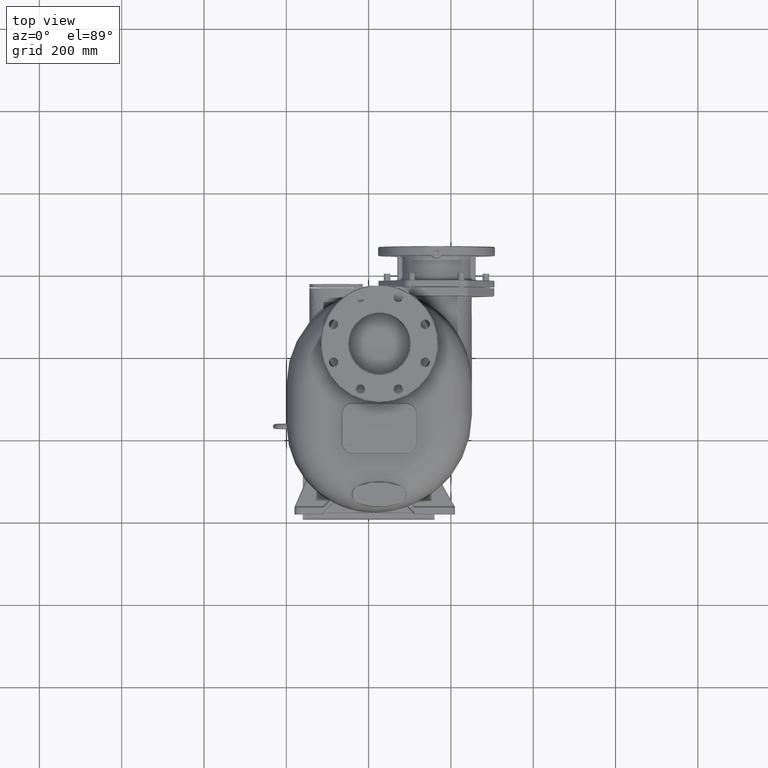
[diagram: clean part render]
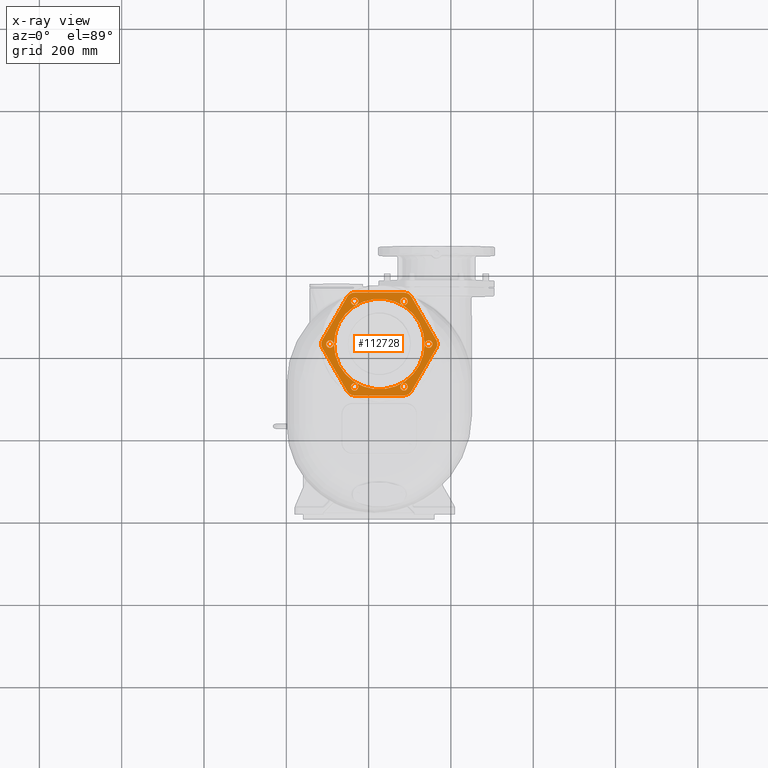
[diagram: x-ray — body ghosted, one internal face saturated and labeled with its STEP entity id]
A machine part, top view, then the same camera in x-ray: the body is ghosted and one INTERNAL B-rep face — a face not visible from any outside direction — is saturated and labeled: STEP entity #112728.
In plain terms, the highlighted planar face has unit normal (0, 0, 1).
Its self-contained STEP definition (entity closure, byte-faithful):
#46116=CARTESIAN_POINT('',(2.6E1,4.09E2,2.055E2));
#46117=DIRECTION('',(0.E0,0.E0,1.E0));
#46118=DIRECTION('',(1.E0,0.E0,0.E0));
#46119=AXIS2_PLACEMENT_3D('',#46116,#46117,#46118);
#46125=CARTESIAN_POINT('',(8.6E1,3.050769515459E2,2.055E2));
#46126=DIRECTION('',(0.E0,0.E0,1.E0));
#46127=DIRECTION('',(-1.E0,0.E0,0.E0));
#46128=AXIS2_PLACEMENT_3D('',#46125,#46126,#46127);
#46130=CARTESIAN_POINT('',(8.6E1,3.050769515459E2,2.055E2));
#46131=DIRECTION('',(0.E0,0.E0,1.E0));
#46132=DIRECTION('',(1.E0,0.E0,0.E0));
#46133=AXIS2_PLACEMENT_3D('',#46130,#46131,#46132);
#46135=CARTESIAN_POINT('',(1.46E2,4.09E2,2.055E2));
#46136=DIRECTION('',(0.E0,0.E0,1.E0));
#46137=DIRECTION('',(-5.E-1,-8.660254037844E-1,0.E0));
#46138=AXIS2_PLACEMENT_3D('',#46135,#46136,#46137);
#46140=CARTESIAN_POINT('',(1.46E2,4.09E2,2.055E2));
#46141=DIRECTION('',(0.E0,0.E0,1.E0));
#46142=DIRECTION('',(5.E-1,8.660254037844E-1,0.E0));
#46143=AXIS2_PLACEMENT_3D('',#46140,#46141,#46142);
#46145=CARTESIAN_POINT('',(8.6E1,5.129230484541E2,2.055E2));
#46146=DIRECTION('',(0.E0,0.E0,1.E0));
#46147=DIRECTION('',(5.E-1,-8.660254037844E-1,0.E0));
#46148=AXIS2_PLACEMENT_3D('',#46145,#46146,#46147);
#46150=CARTESIAN_POINT('',(8.6E1,5.129230484541E2,2.055E2));
#46151=DIRECTION('',(0.E0,0.E0,1.E0));
#46152=DIRECTION('',(-5.E-1,8.660254037844E-1,0.E0));
#46153=AXIS2_PLACEMENT_3D('',#46150,#46151,#46152);
#46155=CARTESIAN_POINT('',(-3.4E1,5.129230484541E2,2.055E2));
#46156=DIRECTION('',(0.E0,0.E0,1.E0));
#46157=DIRECTION('',(1.E0,0.E0,0.E0));
#46158=AXIS2_PLACEMENT_3D('',#46155,#46156,#46157);
#46160=CARTESIAN_POINT('',(-3.4E1,5.129230484541E2,2.055E2));
#46161=DIRECTION('',(0.E0,0.E0,1.E0));
#46162=DIRECTION('',(-1.E0,0.E0,0.E0));
#46163=AXIS2_PLACEMENT_3D('',#46160,#46161,#46162);
#46165=CARTESIAN_POINT('',(-9.4E1,4.09E2,2.055E2));
#46166=DIRECTION('',(0.E0,0.E0,1.E0));
#46167=DIRECTION('',(5.E-1,8.660254037844E-1,0.E0));
#46168=AXIS2_PLACEMENT_3D('',#46165,#46166,#46167);
#46170=CARTESIAN_POINT('',(-9.4E1,4.09E2,2.055E2));
#46171=DIRECTION('',(0.E0,0.E0,1.E0));
#46172=DIRECTION('',(-5.E-1,-8.660254037844E-1,0.E0));
#46173=AXIS2_PLACEMENT_3D('',#46170,#46171,#46172);
#46175=CARTESIAN_POINT('',(-3.4E1,3.050769515459E2,2.055E2));
#46176=DIRECTION('',(0.E0,0.E0,1.E0));
#46177=DIRECTION('',(-5.E-1,8.660254037844E-1,0.E0));
#46178=AXIS2_PLACEMENT_3D('',#46175,#46176,#46177);
#46180=CARTESIAN_POINT('',(-3.4E1,3.050769515459E2,2.055E2));
#46181=DIRECTION('',(0.E0,0.E0,1.E0));
#46182=DIRECTION('',(5.E-1,-8.660254037844E-1,0.E0));
#46183=AXIS2_PLACEMENT_3D('',#46180,#46181,#46182);
#46197=DIRECTION('',(5.E-1,-8.660254037844E-1,0.E0));
#46198=VECTOR('',#46197,1.200888559914E2);
#46199=CARTESIAN_POINT('',(-1.122753894709E2,3.985E2,2.055E2));
#46200=LINE('',#46199,#46198);
#46206=CARTESIAN_POINT('',(-9.408885599144E1,4.09E2,2.055E2));
#46207=DIRECTION('',(0.E0,0.E0,-1.E0));
#46208=DIRECTION('',(-8.660254037845E-1,-5.E-1,0.E0));
#46209=AXIS2_PLACEMENT_3D('',#46206,#46207,#46208);
#46223=DIRECTION('',(-5.E-1,-8.660254037844E-1,0.E0));
#46224=VECTOR('',#46223,1.200888559914E2);
#46225=CARTESIAN_POINT('',(-5.223096147519E1,5.235E2,2.055E2));
#46226=LINE('',#46225,#46224);
#46232=CARTESIAN_POINT('',(-3.404442799572E1,5.13E2,2.055E2));
#46233=DIRECTION('',(0.E0,0.E0,-1.E0));
#46234=DIRECTION('',(-8.660254037844E-1,5.E-1,0.E0));
#46235=AXIS2_PLACEMENT_3D('',#46232,#46233,#46234);
#46249=DIRECTION('',(-1.E0,0.E0,0.E0));
#46250=VECTOR('',#46249,1.200888559914E2);
#46251=CARTESIAN_POINT('',(8.604442799572E1,5.34E2,2.055E2));
#46252=LINE('',#46251,#46250);
#46258=CARTESIAN_POINT('',(8.604442799572E1,5.13E2,2.055E2));
#46259=DIRECTION('',(0.E0,0.E0,-1.E0));
#46260=DIRECTION('',(0.E0,1.E0,0.E0));
#46261=AXIS2_PLACEMENT_3D('',#46258,#46259,#46260);
#46267=DIRECTION('',(-5.E-1,8.660254037844E-1,0.E0));
#46268=VECTOR('',#46267,1.200888559914E2);
#46269=CARTESIAN_POINT('',(1.642753894709E2,4.195E2,2.055E2));
#46270=LINE('',#46269,#46268);
#46284=CARTESIAN_POINT('',(1.460888559914E2,4.09E2,2.055E2));
#46285=DIRECTION('',(0.E0,0.E0,-1.E0));
#46286=DIRECTION('',(8.660254037844E-1,5.E-1,0.E0));
#46287=AXIS2_PLACEMENT_3D('',#46284,#46285,#46286);
#46293=DIRECTION('',(5.E-1,8.660254037844E-1,0.E0));
#46294=VECTOR('',#46293,1.200888559914E2);
#46295=CARTESIAN_POINT('',(1.042309614752E2,2.945E2,2.055E2));
#46296=LINE('',#46295,#46294);
#46310=CARTESIAN_POINT('',(8.604442799572E1,3.05E2,2.055E2));
#46311=DIRECTION('',(0.E0,0.E0,-1.E0));
#46312=DIRECTION('',(8.660254037844E-1,-5.E-1,0.E0));
#46313=AXIS2_PLACEMENT_3D('',#46310,#46311,#46312);
#46319=DIRECTION('',(1.E0,0.E0,0.E0));
#46320=VECTOR('',#46319,1.200888559914E2);
#46321=CARTESIAN_POINT('',(-3.404442799572E1,2.84E2,2.055E2));
#46322=LINE('',#46321,#46320);
#46336=CARTESIAN_POINT('',(-3.404442799572E1,3.05E2,2.055E2));
#46337=DIRECTION('',(0.E0,0.E0,-1.E0));
#46338=DIRECTION('',(0.E0,-1.E0,0.E0));
#46339=AXIS2_PLACEMENT_3D('',#46336,#46337,#46338);
#49358=CARTESIAN_POINT('',(2.6E1,4.09E2,2.055E2));
#49359=DIRECTION('',(0.E0,0.E0,1.E0));
#49360=DIRECTION('',(-1.E0,0.E0,0.E0));
#49361=AXIS2_PLACEMENT_3D('',#49358,#49359,#49360);
#55787=CARTESIAN_POINT('',(1.042309614752E2,5.235E2,2.055E2));
#55788=VERTEX_POINT('',#55787);
#55789=CARTESIAN_POINT('',(8.604442799572E1,5.34E2,2.055E2));
#55790=VERTEX_POINT('',#55789);
#55791=CARTESIAN_POINT('',(1.642753894709E2,3.985E2,2.055E2));
#55792=VERTEX_POINT('',#55791);
#55793=CARTESIAN_POINT('',(1.642753894709E2,4.195E2,2.055E2));
#55794=VERTEX_POINT('',#55793);
#55795=CARTESIAN_POINT('',(8.604442799572E1,2.84E2,2.055E2));
#55796=VERTEX_POINT('',#55795);
#55797=CARTESIAN_POINT('',(1.042309614752E2,2.945E2,2.055E2));
#55798=VERTEX_POINT('',#55797);
#55799=CARTESIAN_POINT('',(-3.404442799572E1,5.34E2,2.055E2));
#55800=VERTEX_POINT('',#55799);
#55801=CARTESIAN_POINT('',(-5.223096147519E1,5.235E2,2.055E2));
#55802=VERTEX_POINT('',#55801);
#55803=CARTESIAN_POINT('',(-1.122753894709E2,4.195E2,2.055E2));
#55804=VERTEX_POINT('',#55803);
#55805=CARTESIAN_POINT('',(-1.122753894709E2,3.985E2,2.055E2));
#55806=VERTEX_POINT('',#55805);
#55807=CARTESIAN_POINT('',(-5.223096147519E1,2.945E2,2.055E2));
#55808=VERTEX_POINT('',#55807);
#55809=CARTESIAN_POINT('',(-3.404442799572E1,2.84E2,2.055E2));
#55810=VERTEX_POINT('',#55809);
#55833=CARTESIAN_POINT('',(7.7E1,3.050769515459E2,2.055E2));
#55834=CARTESIAN_POINT('',(9.5E1,3.050769515459E2,2.055E2));
#55835=VERTEX_POINT('',#55833);
#55836=VERTEX_POINT('',#55834);
#55841=CARTESIAN_POINT('',(1.415E2,4.012057713659E2,2.055E2));
#55842=CARTESIAN_POINT('',(1.505E2,4.167942286341E2,2.055E2));
#55843=VERTEX_POINT('',#55841);
#55844=VERTEX_POINT('',#55842);
#55849=CARTESIAN_POINT('',(9.05E1,5.051288198201E2,2.055E2));
#55850=CARTESIAN_POINT('',(8.15E1,5.207172770882E2,2.055E2));
#55851=VERTEX_POINT('',#55849);
#55852=VERTEX_POINT('',#55850);
#55857=CARTESIAN_POINT('',(-2.5E1,5.129230484541E2,2.055E2));
#55858=CARTESIAN_POINT('',(-4.3E1,5.129230484541E2,2.055E2));
#55859=VERTEX_POINT('',#55857);
#55860=VERTEX_POINT('',#55858);
#55865=CARTESIAN_POINT('',(-8.95E1,4.167942286341E2,2.055E2));
#55866=CARTESIAN_POINT('',(-9.85E1,4.012057713659E2,2.055E2));
#55867=VERTEX_POINT('',#55865);
#55868=VERTEX_POINT('',#55866);
#55873=CARTESIAN_POINT('',(-3.85E1,3.128711801799E2,2.055E2));
#55874=CARTESIAN_POINT('',(-2.95E1,2.972827229118E2,2.055E2));
#55875=VERTEX_POINT('',#55873);
#55876=VERTEX_POINT('',#55874);
#55964=CARTESIAN_POINT('',(1.36E2,4.09E2,2.055E2));
#55965=CARTESIAN_POINT('',(-8.4E1,4.09E2,2.055E2));
#55966=VERTEX_POINT('',#55964);
#55967=VERTEX_POINT('',#55965);
#112656=CARTESIAN_POINT('',(2.6E1,4.09E2,2.055E2));
#112657=DIRECTION('',(0.E0,0.E0,1.E0));
#112658=DIRECTION('',(0.E0,1.E0,0.E0));
#112659=AXIS2_PLACEMENT_3D('',#112656,#112657,#112658);
#112660=PLANE('',#112659);
#112662=ORIENTED_EDGE('',*,*,#112661,.T.);
#112664=ORIENTED_EDGE('',*,*,#112663,.F.);
#112666=ORIENTED_EDGE('',*,*,#112665,.T.);
#112668=ORIENTED_EDGE('',*,*,#112667,.F.);
#112670=ORIENTED_EDGE('',*,*,#112669,.T.);
#112672=ORIENTED_EDGE('',*,*,#112671,.F.);
#112674=ORIENTED_EDGE('',*,*,#112673,.T.);
#112676=ORIENTED_EDGE('',*,*,#112675,.F.);
#112678=ORIENTED_EDGE('',*,*,#112677,.T.);
#112680=ORIENTED_EDGE('',*,*,#112679,.F.);
#112682=ORIENTED_EDGE('',*,*,#112681,.T.);
#112684=ORIENTED_EDGE('',*,*,#112683,.F.);
#112685=EDGE_LOOP('',(#112662,#112664,#112666,#112668,#112670,#112672,#112674,
#112676,#112678,#112680,#112682,#112684));
#112686=FACE_OUTER_BOUND('',#112685,.F.);
#112688=ORIENTED_EDGE('',*,*,#112687,.F.);
#112690=ORIENTED_EDGE('',*,*,#112689,.F.);
#112691=EDGE_LOOP('',(#112688,#112690));
#112692=FACE_BOUND('',#112691,.F.);
#112694=ORIENTED_EDGE('',*,*,#112693,.F.);
#112696=ORIENTED_EDGE('',*,*,#112695,.F.);
#112697=EDGE_LOOP('',(#112694,#112696));
#112698=FACE_BOUND('',#112697,.F.);
#112700=ORIENTED_EDGE('',*,*,#112699,.F.);
#112702=ORIENTED_EDGE('',*,*,#112701,.F.);
#112703=EDGE_LOOP('',(#112700,#112702));
#112704=FACE_BOUND('',#112703,.F.);
#112706=ORIENTED_EDGE('',*,*,#112705,.F.);
#112708=ORIENTED_EDGE('',*,*,#112707,.F.);
#112709=EDGE_LOOP('',(#112706,#112708));
#112710=FACE_BOUND('',#112709,.F.);
#112712=ORIENTED_EDGE('',*,*,#112711,.F.);
#112714=ORIENTED_EDGE('',*,*,#112713,.F.);
#112715=EDGE_LOOP('',(#112712,#112714));
#112716=FACE_BOUND('',#112715,.F.);
#112718=ORIENTED_EDGE('',*,*,#112717,.F.);
#112720=ORIENTED_EDGE('',*,*,#112719,.F.);
#112721=EDGE_LOOP('',(#112718,#112720));
#112722=FACE_BOUND('',#112721,.F.);
#112723=ORIENTED_EDGE('',*,*,#112646,.F.);
#112725=ORIENTED_EDGE('',*,*,#112724,.F.);
#112726=EDGE_LOOP('',(#112723,#112725));
#112727=FACE_BOUND('',#112726,.F.);
#112728=ADVANCED_FACE('',(#112686,#112692,#112698,#112704,#112710,#112716,
#112722,#112727),#112660,.F.);
#46120=CIRCLE('',#46119,1.1E2);
#46129=CIRCLE('',#46128,9.E0);
#46134=CIRCLE('',#46133,9.E0);
#46139=CIRCLE('',#46138,9.E0);
#46144=CIRCLE('',#46143,9.E0);
#46149=CIRCLE('',#46148,9.E0);
#46154=CIRCLE('',#46153,9.E0);
#46159=CIRCLE('',#46158,9.E0);
#46164=CIRCLE('',#46163,9.E0);
#46169=CIRCLE('',#46168,9.E0);
#46174=CIRCLE('',#46173,9.E0);
#46179=CIRCLE('',#46178,9.E0);
#46184=CIRCLE('',#46183,9.E0);
#46210=CIRCLE('',#46209,2.1E1);
#46236=CIRCLE('',#46235,2.1E1);
#46262=CIRCLE('',#46261,2.1E1);
#46288=CIRCLE('',#46287,2.1E1);
#46314=CIRCLE('',#46313,2.1E1);
#46340=CIRCLE('',#46339,2.1E1);
#49362=CIRCLE('',#49361,1.1E2);
#112646=EDGE_CURVE('',#55966,#55967,#46120,.T.);
#112661=EDGE_CURVE('',#55806,#55808,#46200,.T.);
#112663=EDGE_CURVE('',#55810,#55808,#46340,.T.);
#112665=EDGE_CURVE('',#55810,#55796,#46322,.T.);
#112667=EDGE_CURVE('',#55798,#55796,#46314,.T.);
#112669=EDGE_CURVE('',#55798,#55792,#46296,.T.);
#112671=EDGE_CURVE('',#55794,#55792,#46288,.T.);
#112673=EDGE_CURVE('',#55794,#55788,#46270,.T.);
#112675=EDGE_CURVE('',#55790,#55788,#46262,.T.);
#112677=EDGE_CURVE('',#55790,#55800,#46252,.T.);
#112679=EDGE_CURVE('',#55802,#55800,#46236,.T.);
#112681=EDGE_CURVE('',#55802,#55804,#46226,.T.);
#112683=EDGE_CURVE('',#55806,#55804,#46210,.T.);
#112687=EDGE_CURVE('',#55835,#55836,#46129,.T.);
#112689=EDGE_CURVE('',#55836,#55835,#46134,.T.);
#112693=EDGE_CURVE('',#55843,#55844,#46139,.T.);
#112695=EDGE_CURVE('',#55844,#55843,#46144,.T.);
#112699=EDGE_CURVE('',#55851,#55852,#46149,.T.);
#112701=EDGE_CURVE('',#55852,#55851,#46154,.T.);
#112705=EDGE_CURVE('',#55859,#55860,#46159,.T.);
#112707=EDGE_CURVE('',#55860,#55859,#46164,.T.);
#112711=EDGE_CURVE('',#55867,#55868,#46169,.T.);
#112713=EDGE_CURVE('',#55868,#55867,#46174,.T.);
#112717=EDGE_CURVE('',#55875,#55876,#46179,.T.);
#112719=EDGE_CURVE('',#55876,#55875,#46184,.T.);
#112724=EDGE_CURVE('',#55967,#55966,#49362,.T.);